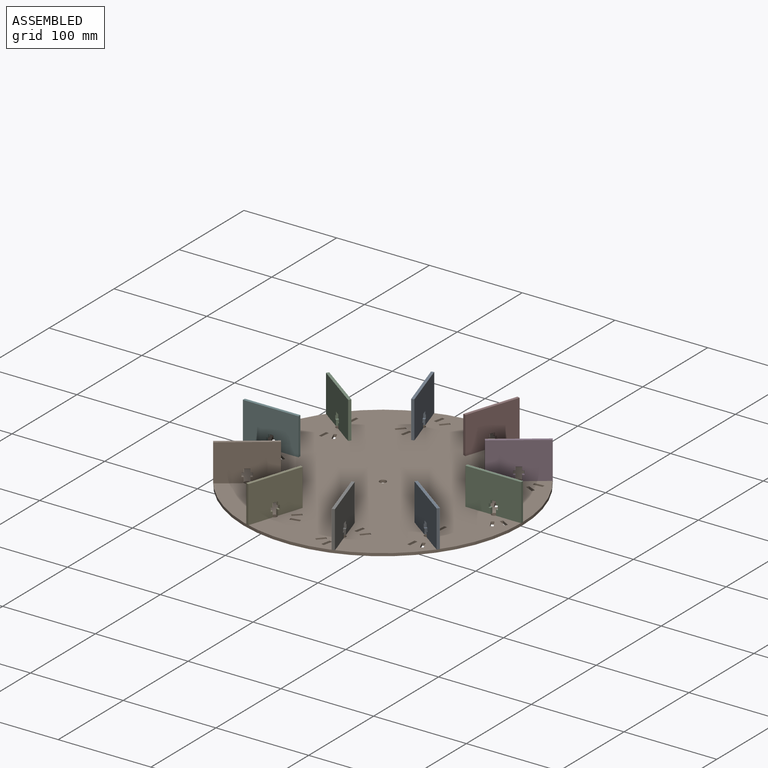
[diagram: assembled view]
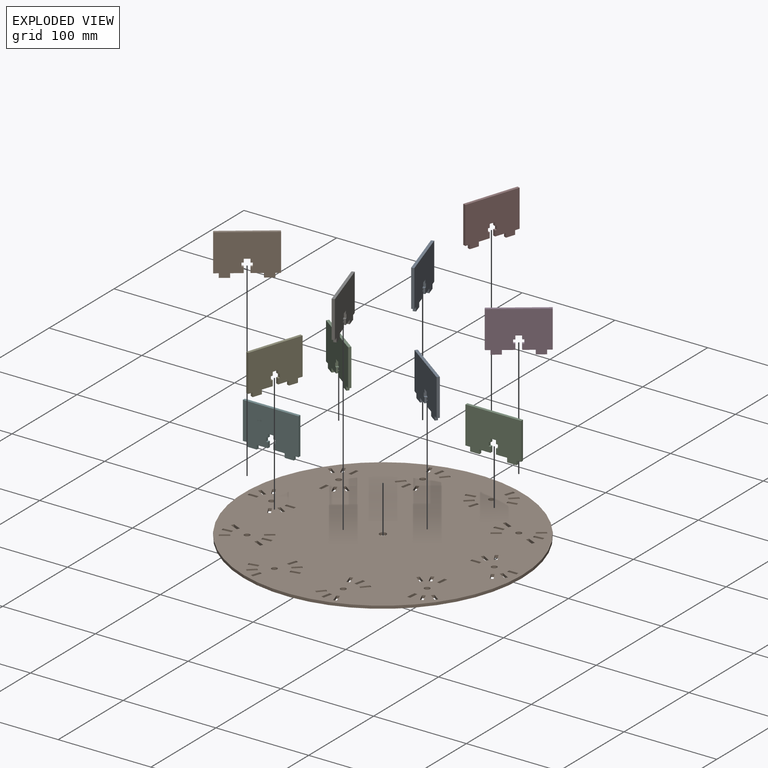
[diagram: exploded view]
GUIDED TOUR — MATED ASSEMBLY (Onshape document 53dfe556006007de46bcb2ab, AutoMate assembly 53dfe556006007de46bcb2ab_06f255de83da2fdaea296ef8_d77c5ae04e32a0eca46fdb66_default)

This assembly has 11 components, labeled P0..P10 below (a component is one placed occurrence of a part; the same part can appear more than once), held together by 1 mate. A mate is a constraint between two components; its type names the relative motion it leaves free:
  REVOLUTE — leaves rotation about the listed axis free (a hinge).
Axis/direction vectors are unit vectors and 'through' points are millimeter coordinates, both in the assembly's world frame.

MATES
  1. REVOLUTE "Revolute 1": P2 <-> P1, axis (0.000, 0.000, 1.000) through (120.00, 0.00, 3.00) mm

ASSEMBLY ORDER
  1. P5 — the base component [order verified]
  2. P1 [order verified]
  3. P10 [order verified]
  4. P9 [order verified]
  5. P8 [order verified]
  6. P7 [order verified]
  7. P6 [order verified]
  8. P4 [order verified]
  9. P3 [order verified]
  10. P2 [order verified]
  11. P0 [order verified]
(P1 verified with a relaxed clearance tolerance: the source model stores slight part interference there.)
Order-tag legend:
  [order verified] — this step's position reverses a verified removal order: the component was checked to insert without passing through the ones already placed.

Of the 11 components, 10 carry the full construction recipe — the FeatureScript program that regenerates the part's solid from scratch; the rest are supplied as boundary geometry only.
Each toured component is shown spotlighted twice — in the assembled view, then in the exploded view, where a leader line traces a displaced component back to its assembled socket (saturated green if recipe-attached, orange if geometry-only; every other component desaturated gray) — followed by its recipe or geometry summary and the mates that hold it.
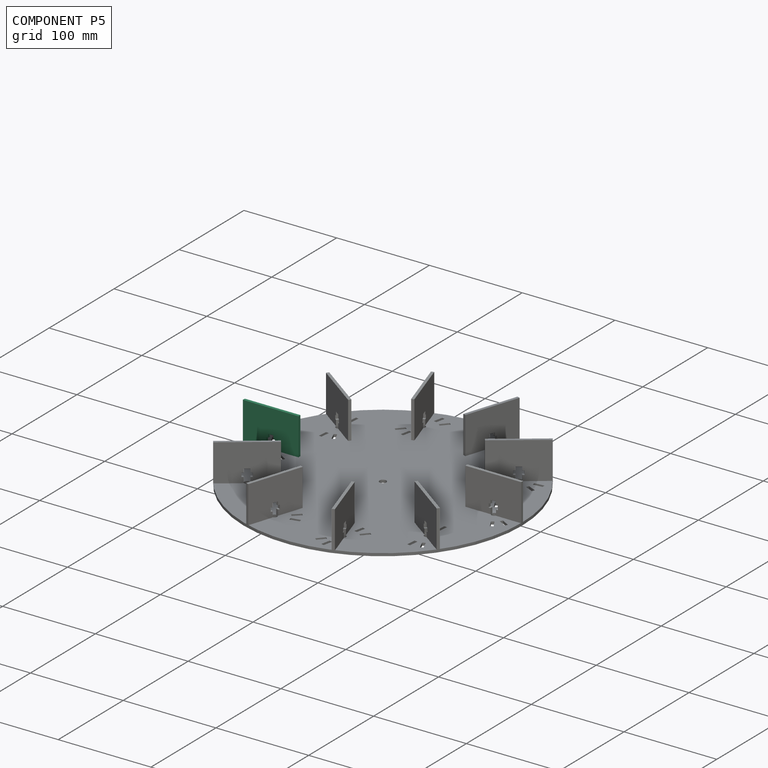
[diagram: component P5 — assembled]
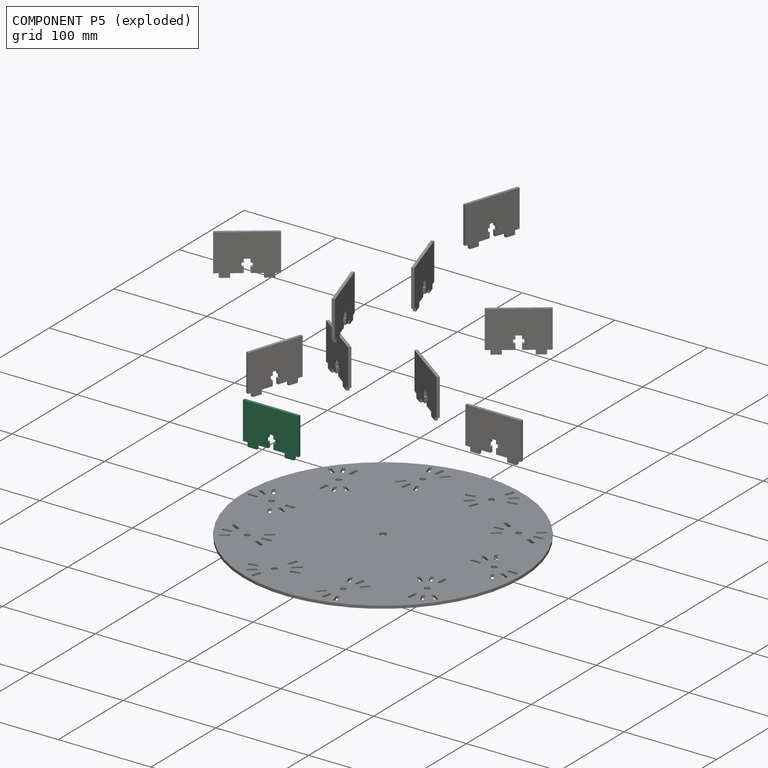
[diagram: component P5 — exploded]
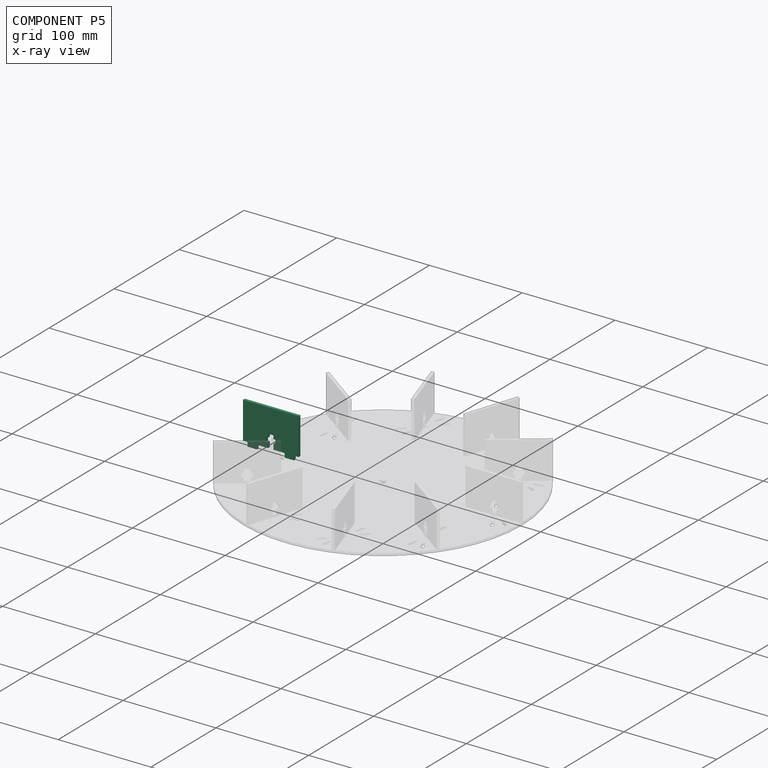
[diagram: component P5 — x-ray view]
COMPONENT P5 — same part as P0 (CADFS 00237727); its construction recipe is shown at P0.
Held by: no mates (free).
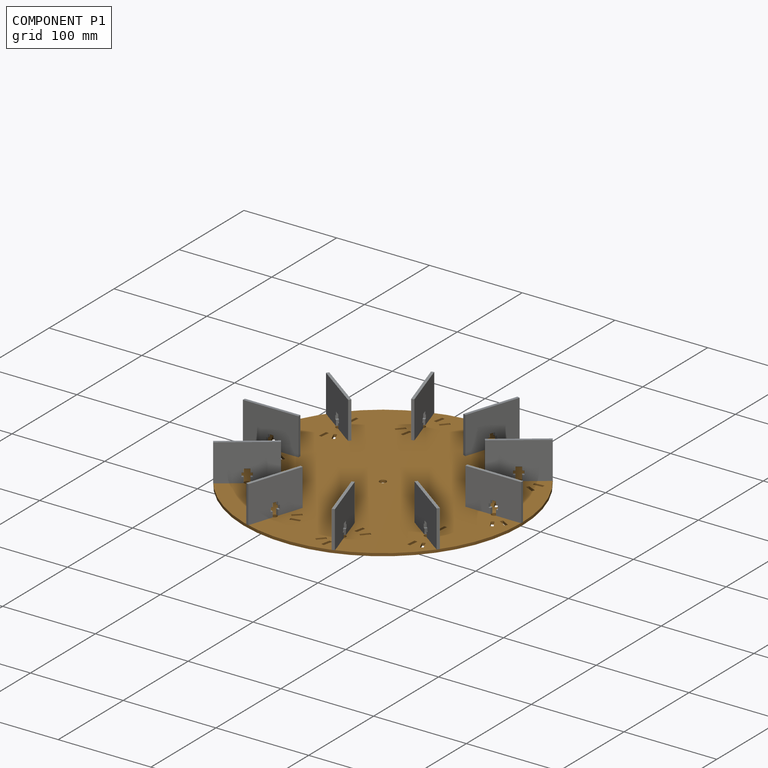
[diagram: component P1 — assembled]
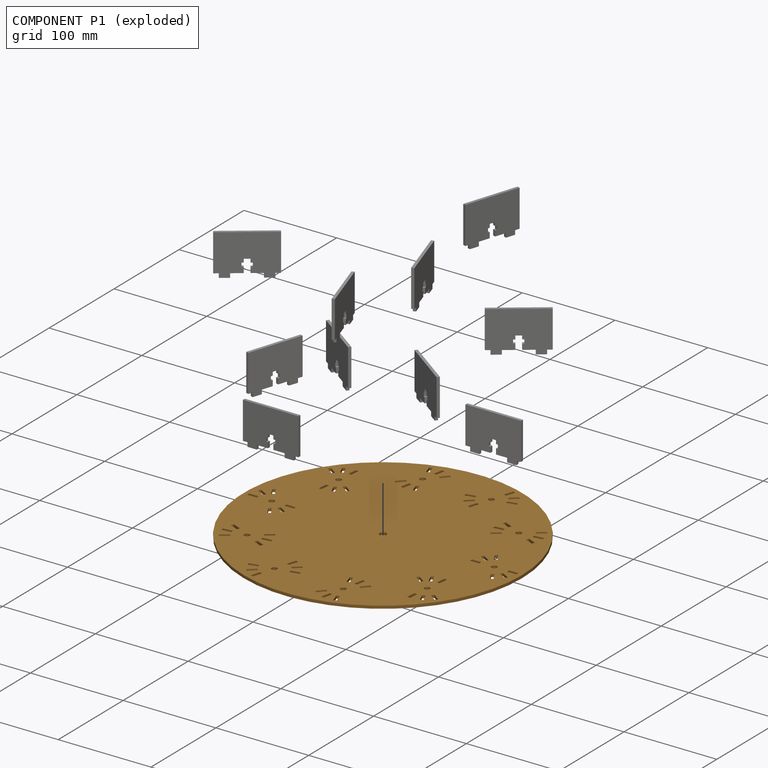
[diagram: component P1 — exploded]
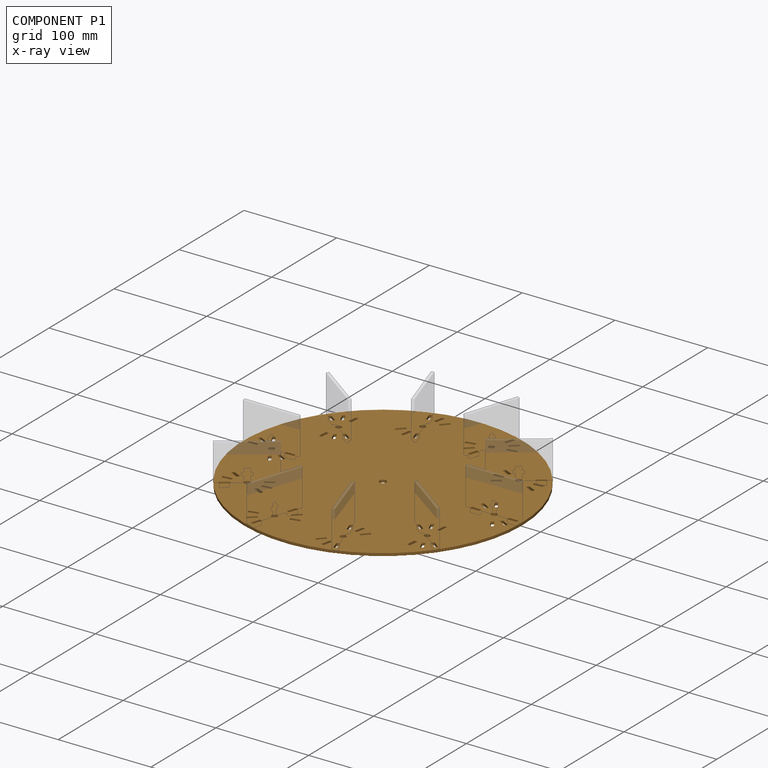
[diagram: component P1 — x-ray view]
COMPONENT P1 — geometry summary (no construction recipe available for this part):
  bounding box: 300.0 x 300.0 x 3.0 mm
  B-rep topology: 1 solid, 254 faces, 1530 edges
  volume: 205325 mm^3 (76% of its bounding box)
  symmetry: 2-fold rotationally symmetric about the x axis; 2-fold rotationally symmetric about the y axis; revolution-symmetric about the z axis through its bounding-box center; mirror-symmetric across its x mid-plane, y mid-plane, z mid-plane
Held by: REVOLUTE mate "Revolute 1" to P2.
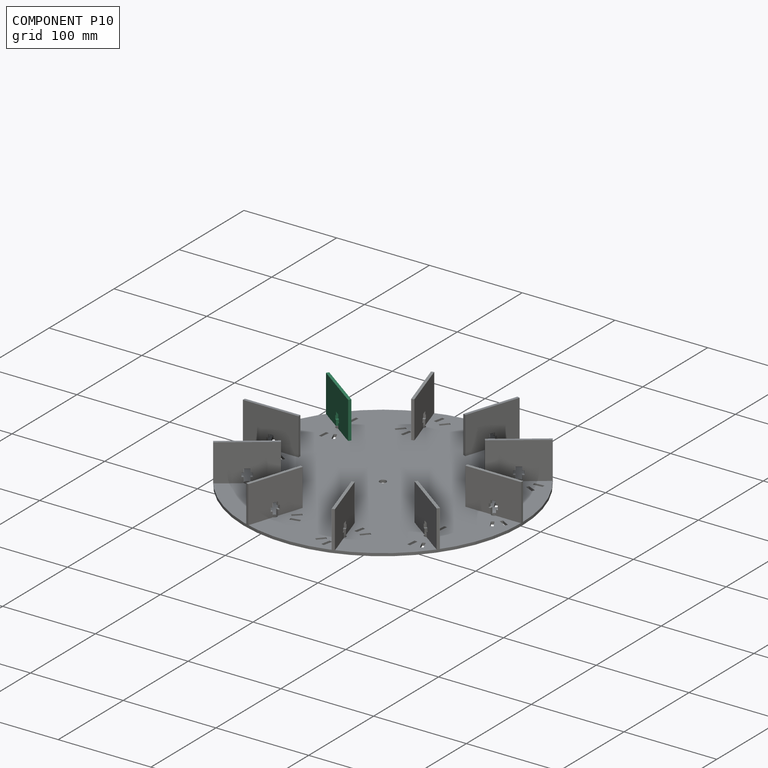
[diagram: component P10 — assembled]
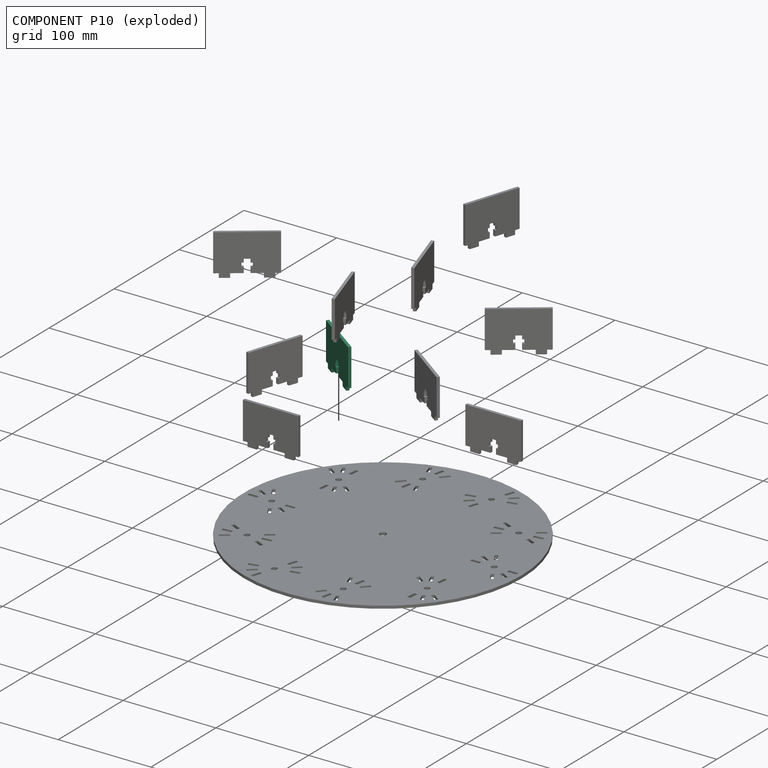
[diagram: component P10 — exploded]
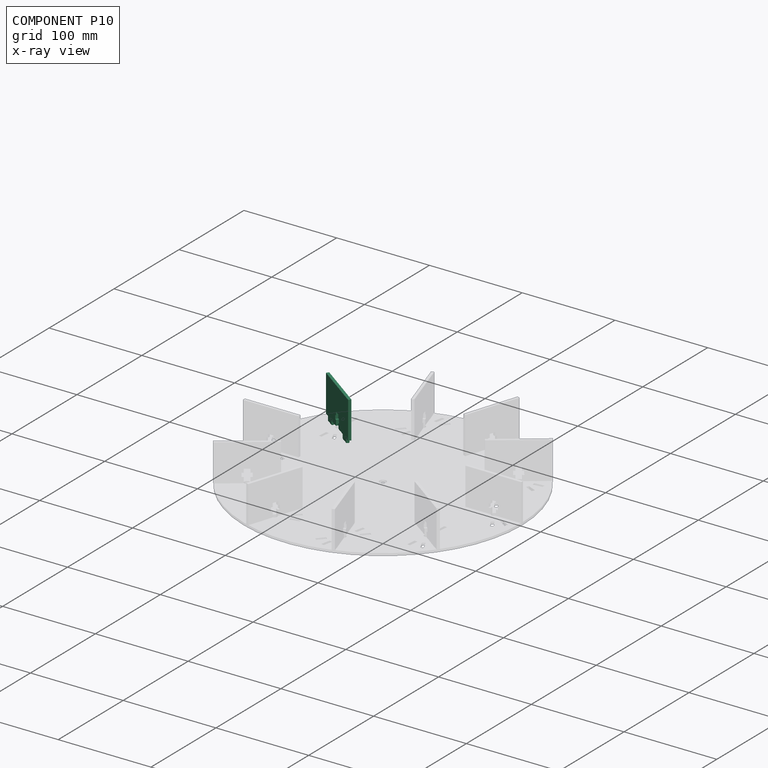
[diagram: component P10 — x-ray view]
COMPONENT P10 — same part as P0 (CADFS 00237727); its construction recipe is shown at P0.
Held by: no mates (free).
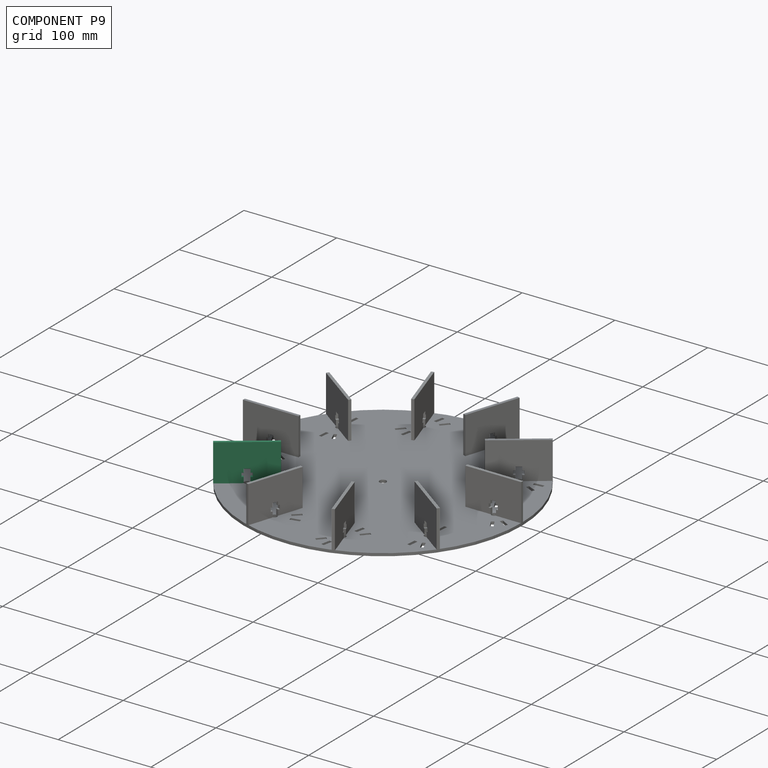
[diagram: component P9 — assembled]
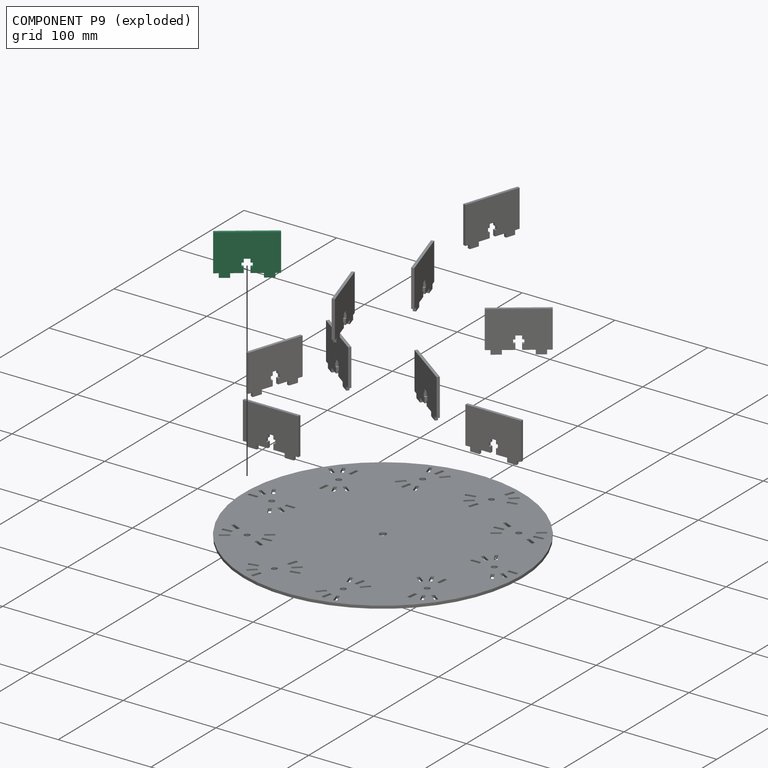
[diagram: component P9 — exploded]
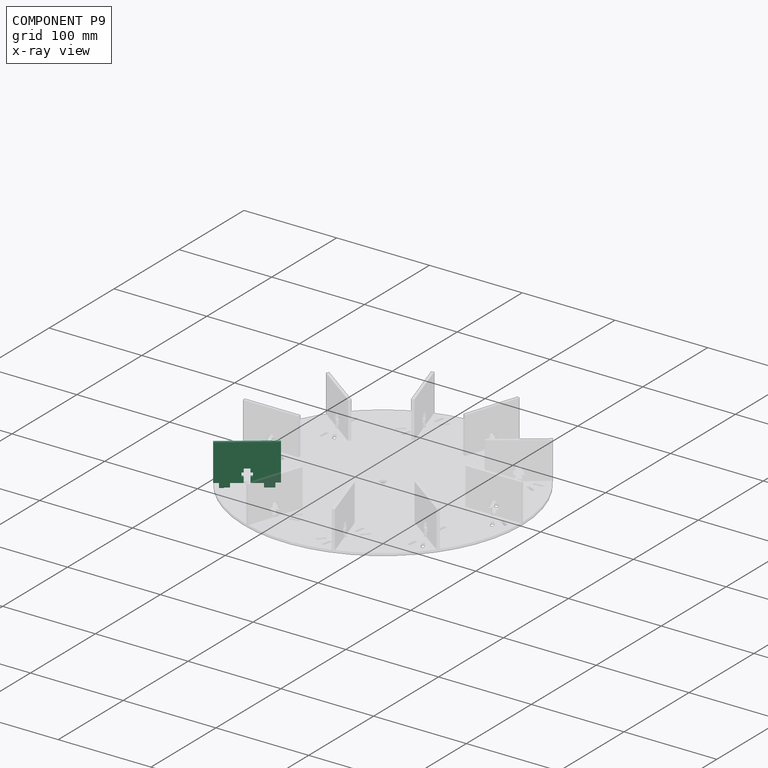
[diagram: component P9 — x-ray view]
COMPONENT P9 — same part as P0 (CADFS 00237727); its construction recipe is shown at P0.
Held by: no mates (free).
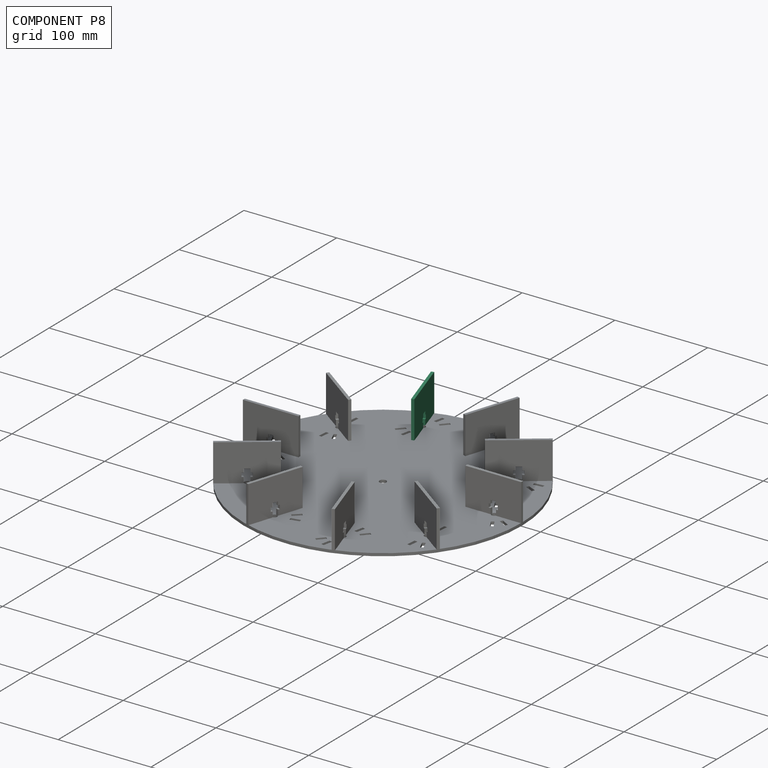
[diagram: component P8 — assembled]
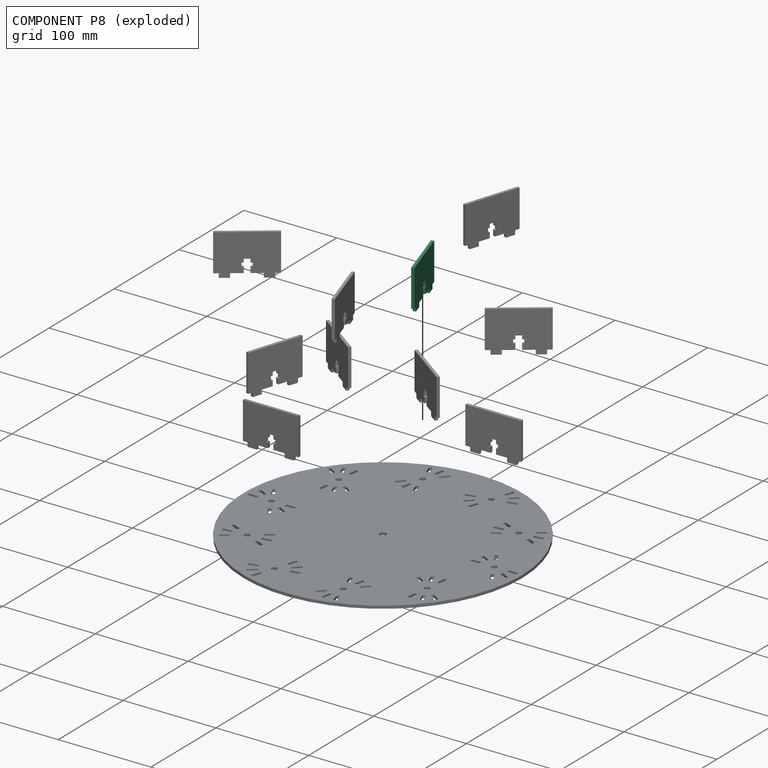
[diagram: component P8 — exploded]
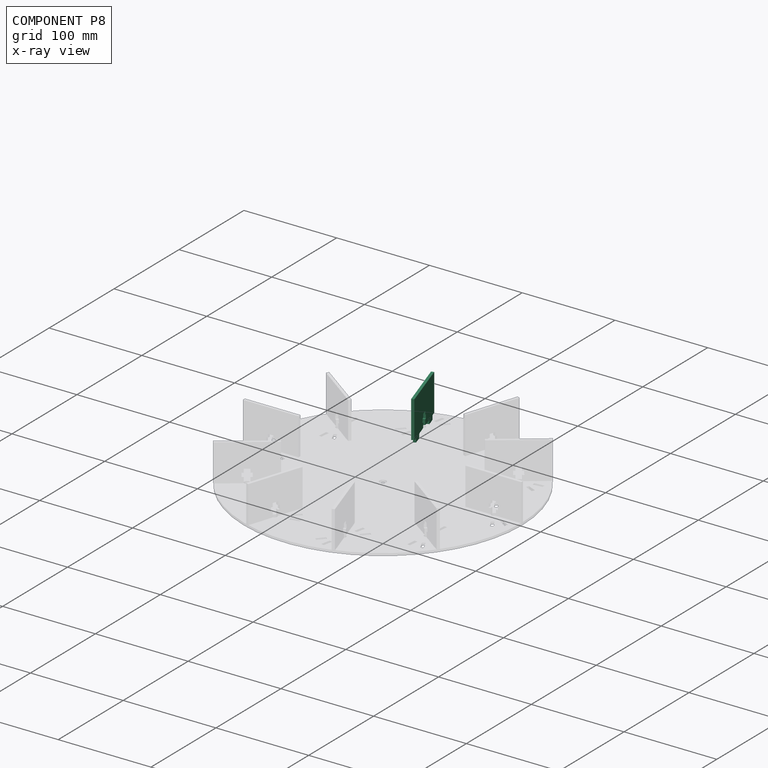
[diagram: component P8 — x-ray view]
COMPONENT P8 — same part as P0 (CADFS 00237727); its construction recipe is shown at P0.
Held by: no mates (free).
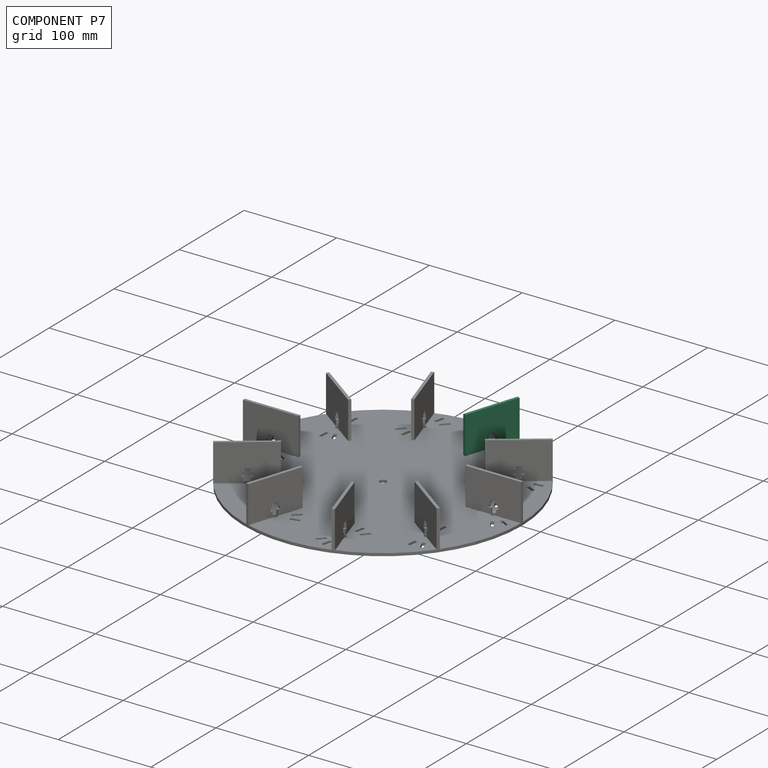
[diagram: component P7 — assembled]
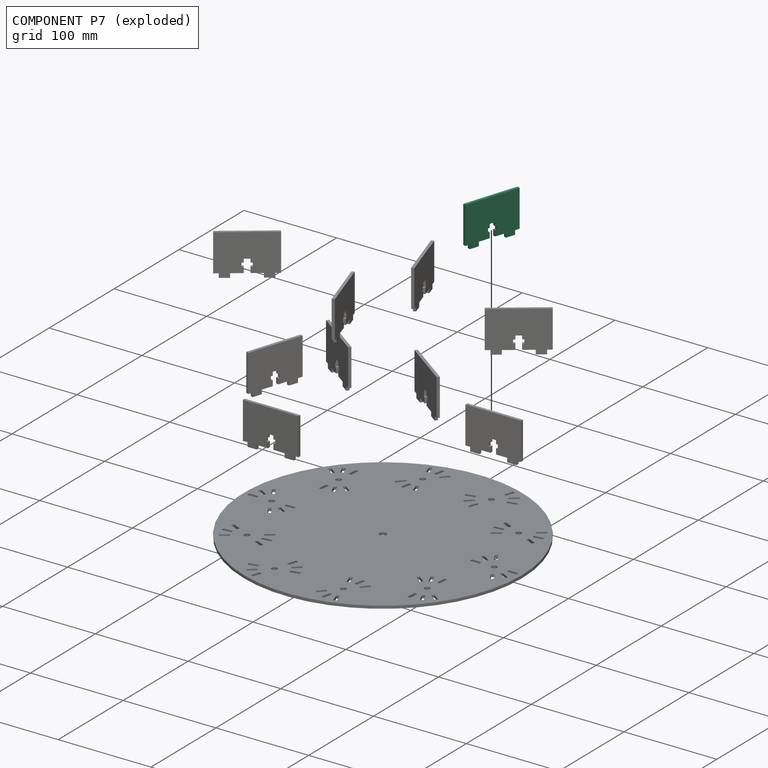
[diagram: component P7 — exploded]
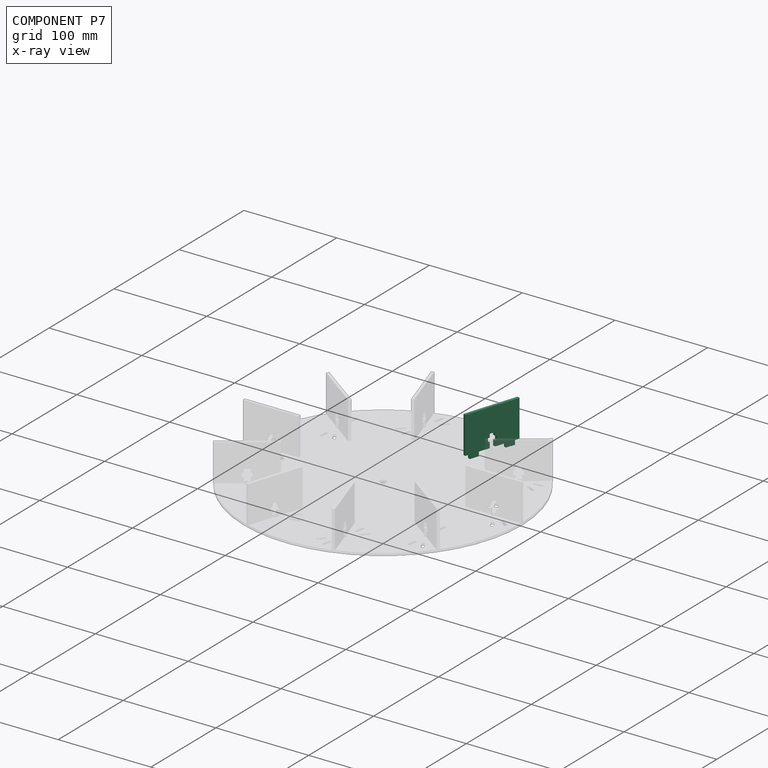
[diagram: component P7 — x-ray view]
COMPONENT P7 — same part as P0 (CADFS 00237727); its construction recipe is shown at P0.
Held by: no mates (free).
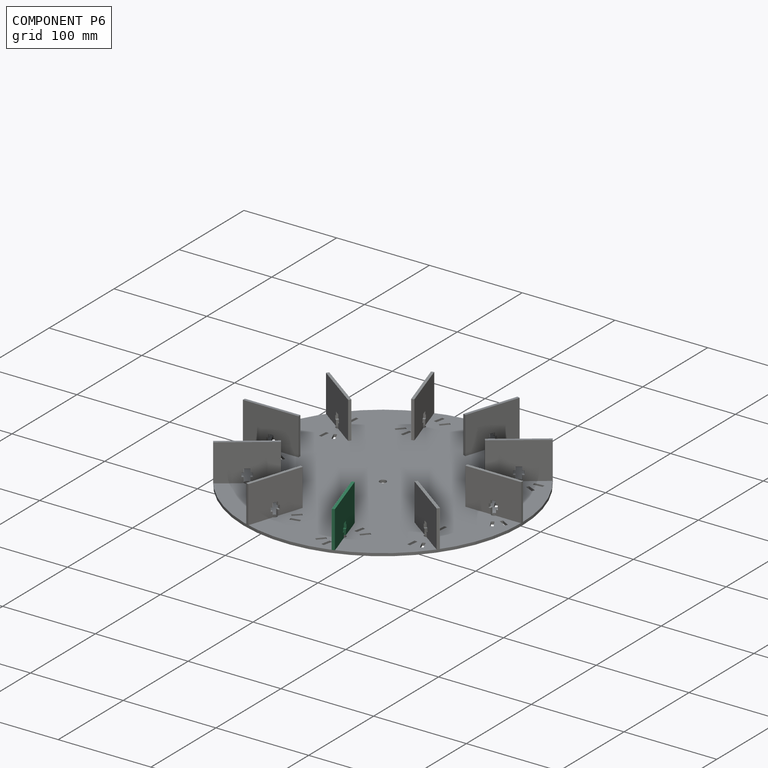
[diagram: component P6 — assembled]
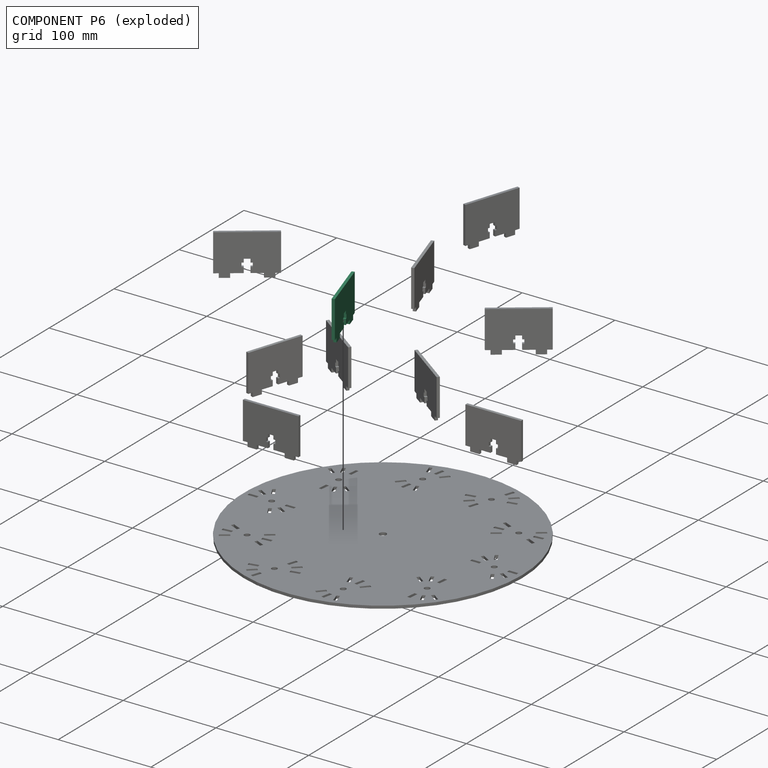
[diagram: component P6 — exploded]
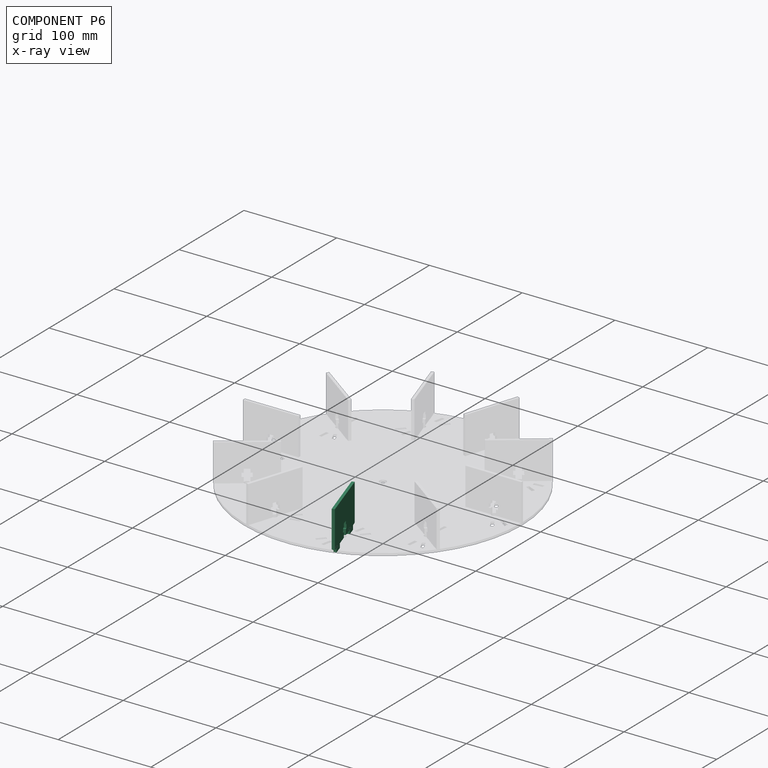
[diagram: component P6 — x-ray view]
COMPONENT P6 — same part as P0 (CADFS 00237727); its construction recipe is shown at P0.
Held by: no mates (free).
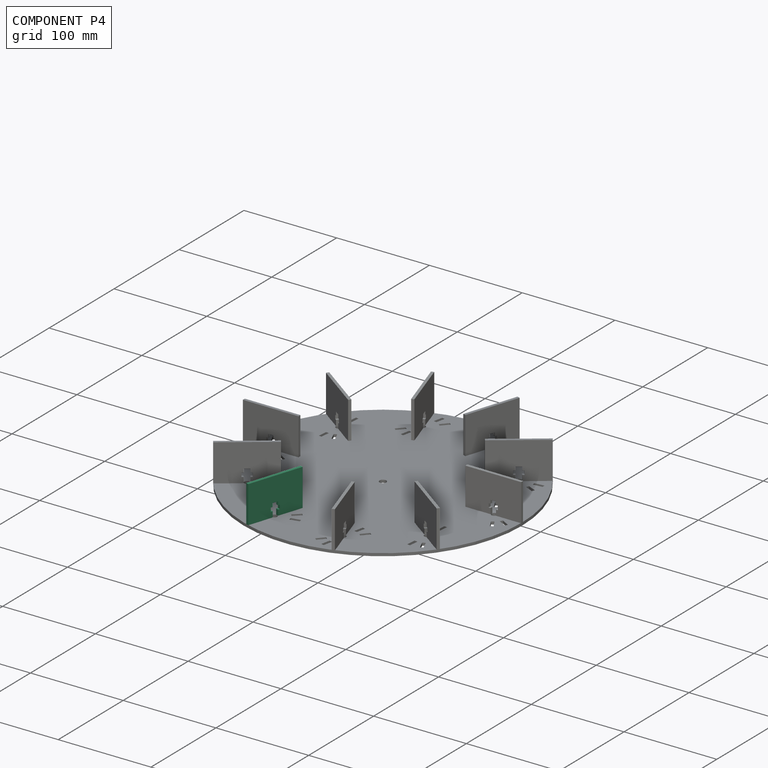
[diagram: component P4 — assembled]
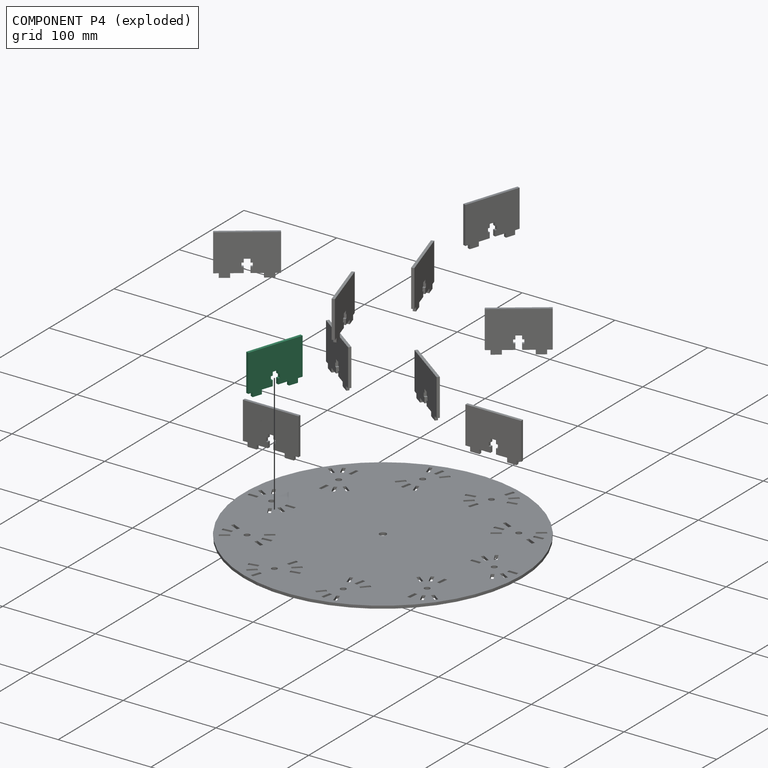
[diagram: component P4 — exploded]
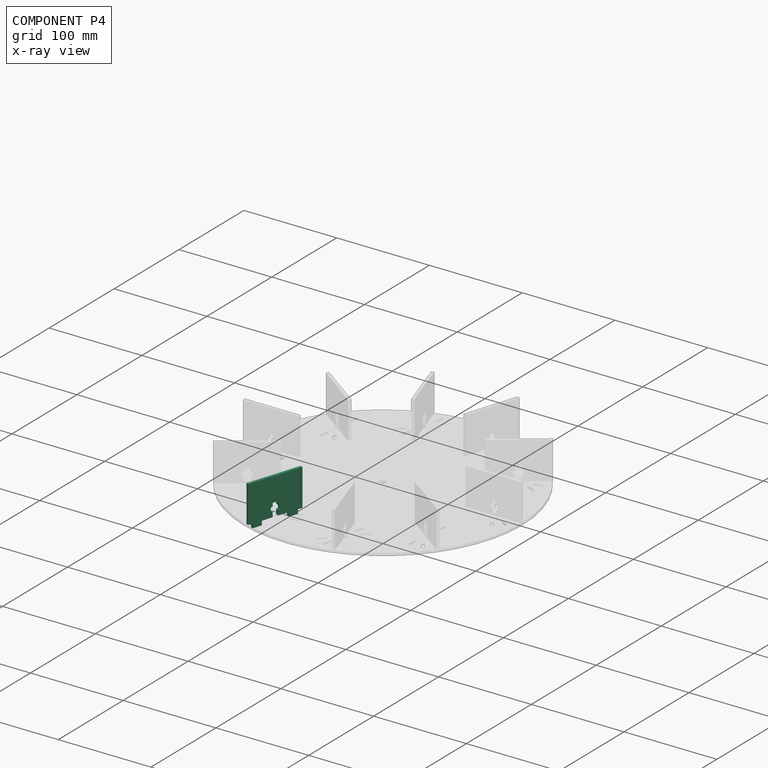
[diagram: component P4 — x-ray view]
COMPONENT P4 — same part as P0 (CADFS 00237727); its construction recipe is shown at P0.
Held by: no mates (free).
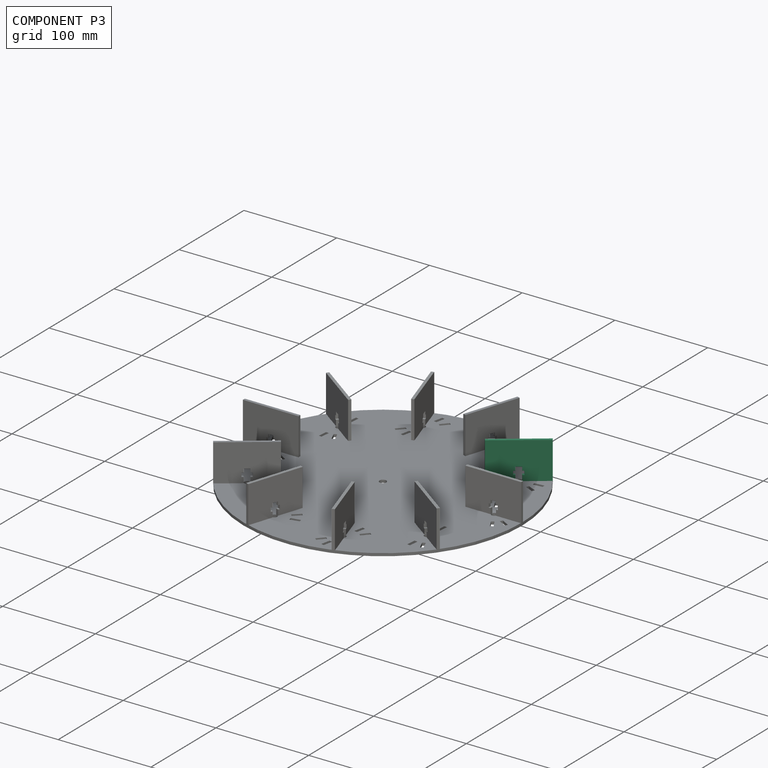
[diagram: component P3 — assembled]
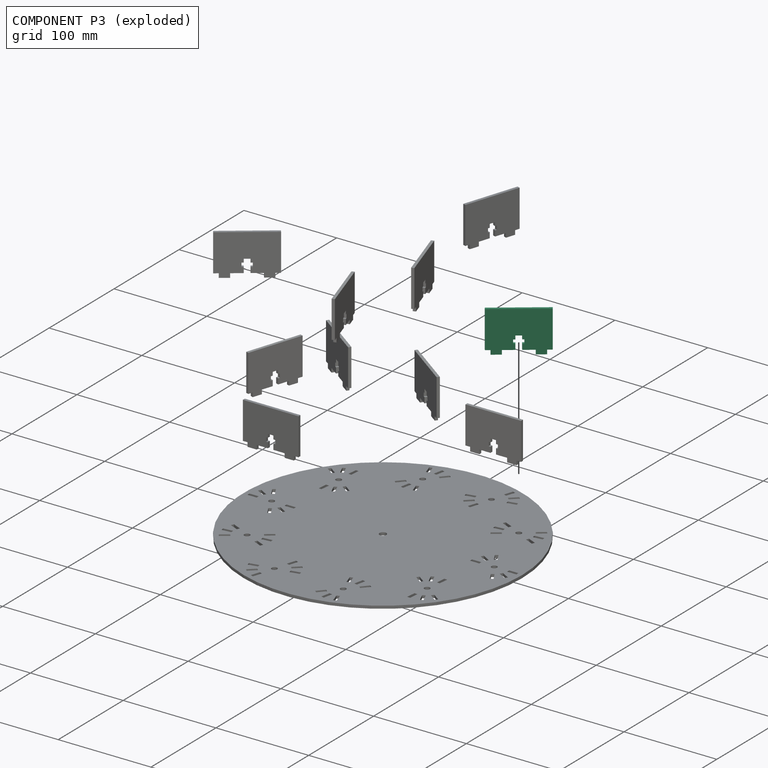
[diagram: component P3 — exploded]
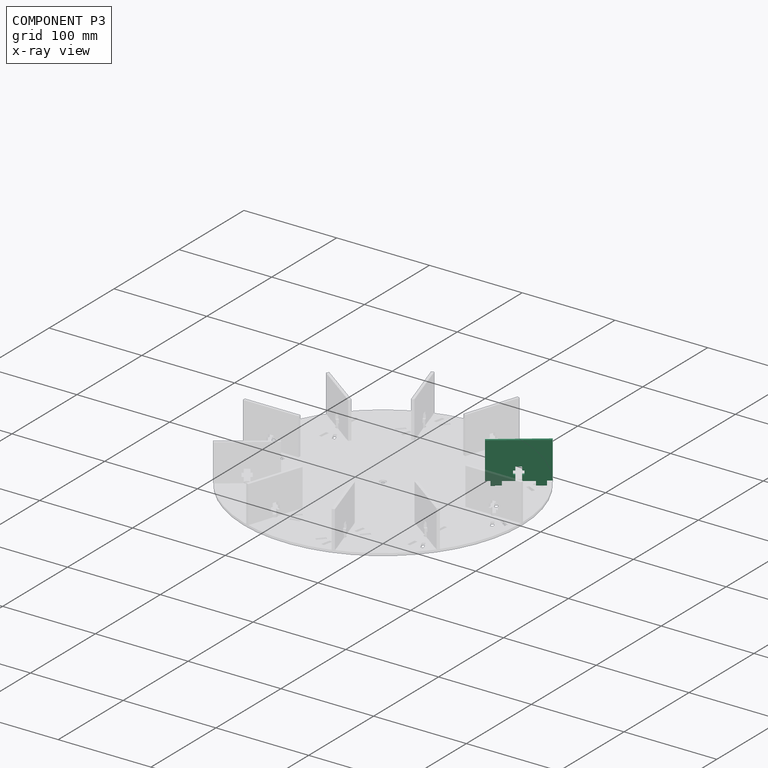
[diagram: component P3 — x-ray view]
COMPONENT P3 — same part as P0 (CADFS 00237727); its construction recipe is shown at P0.
Held by: no mates (free).
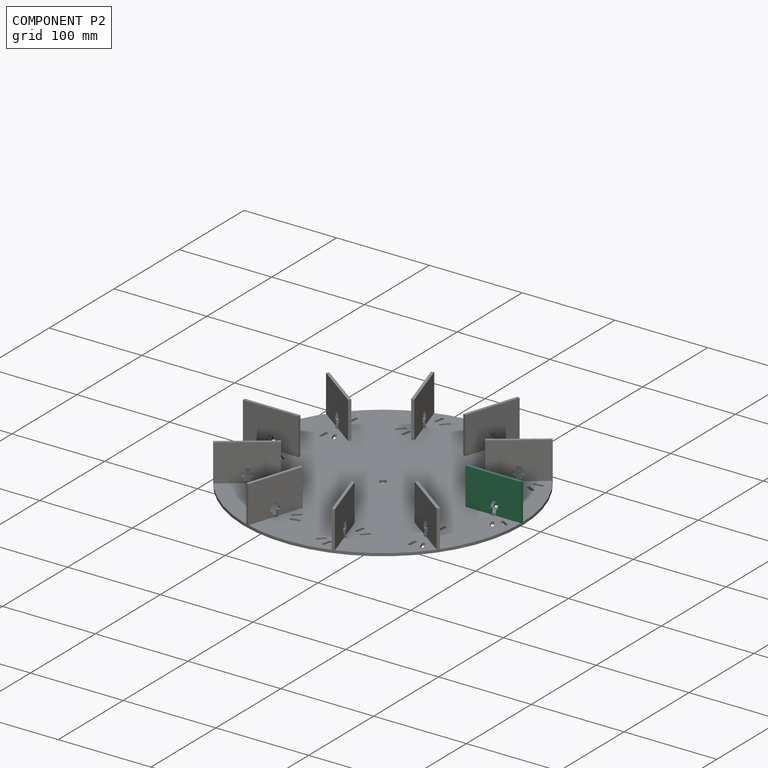
[diagram: component P2 — assembled]
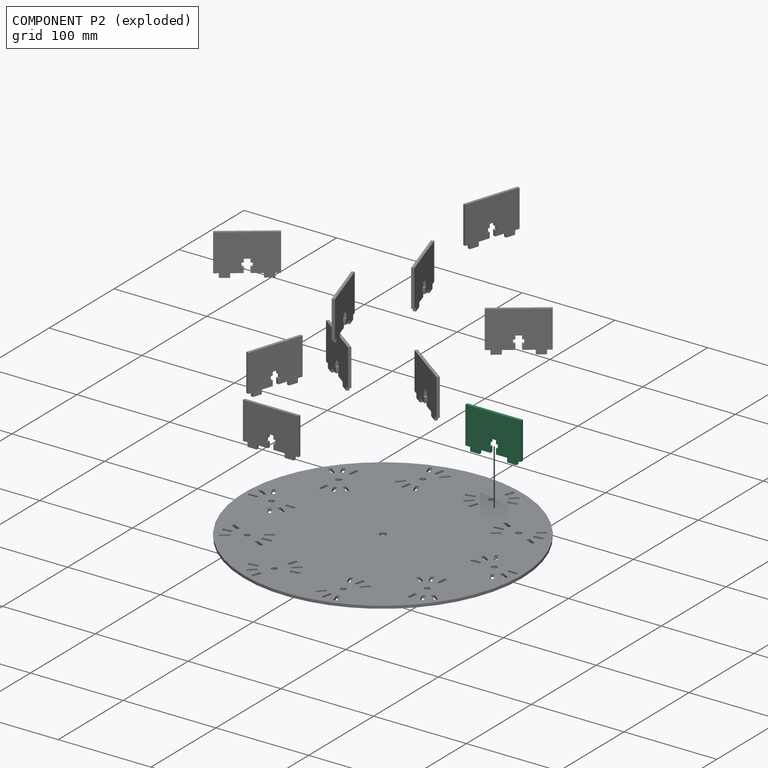
[diagram: component P2 — exploded]
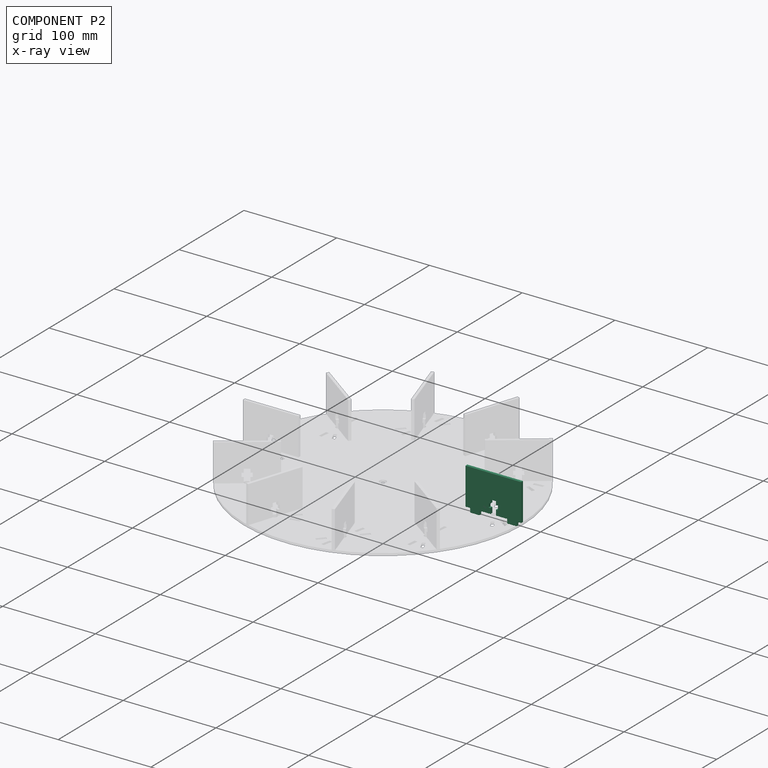
[diagram: component P2 — x-ray view]
COMPONENT P2 — same part as P0 (CADFS 00237727); its construction recipe is shown at P0.
Held by: REVOLUTE mate "Revolute 1" to P1.
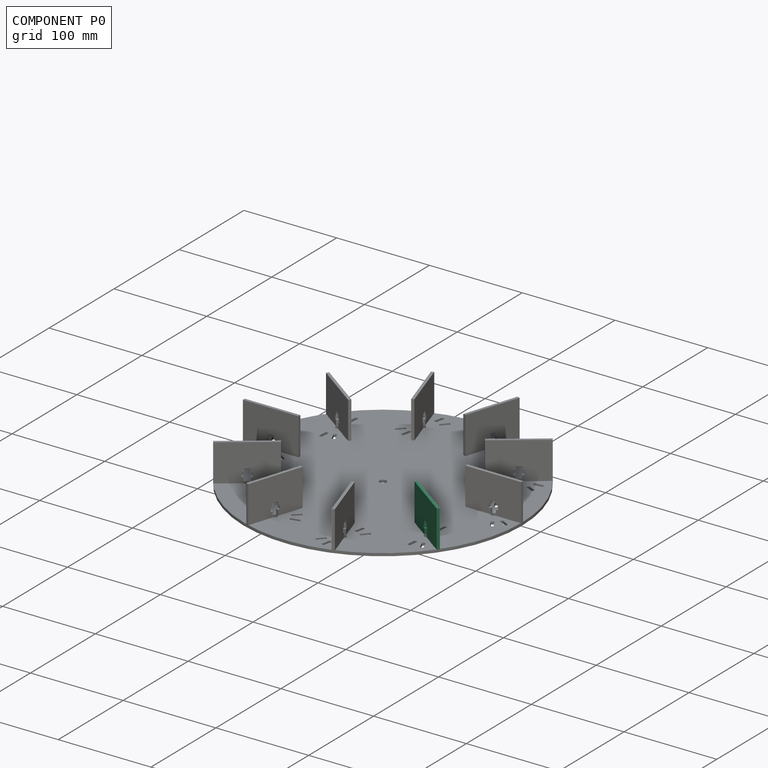
[diagram: component P0 — assembled]
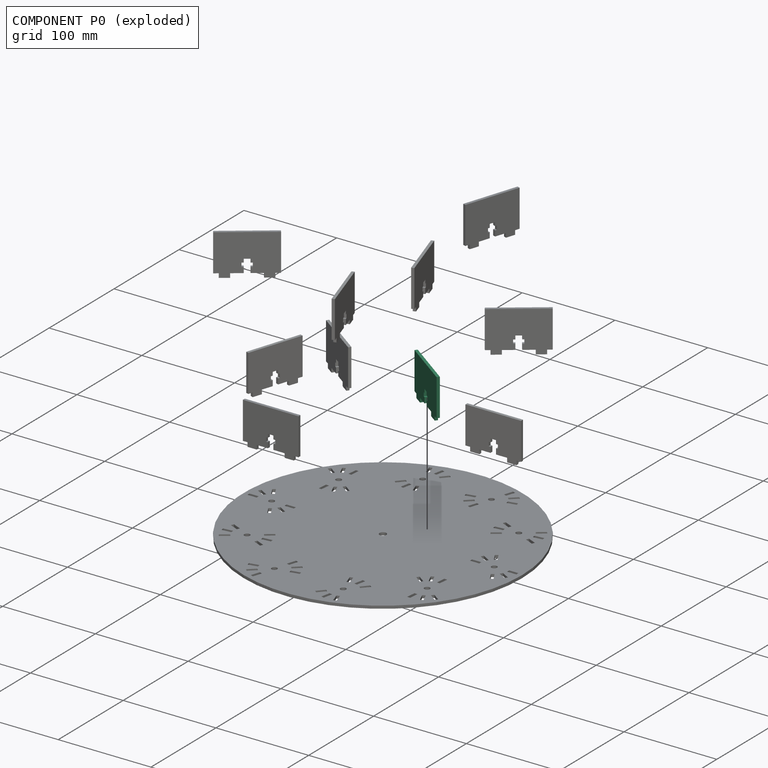
[diagram: component P0 — exploded]
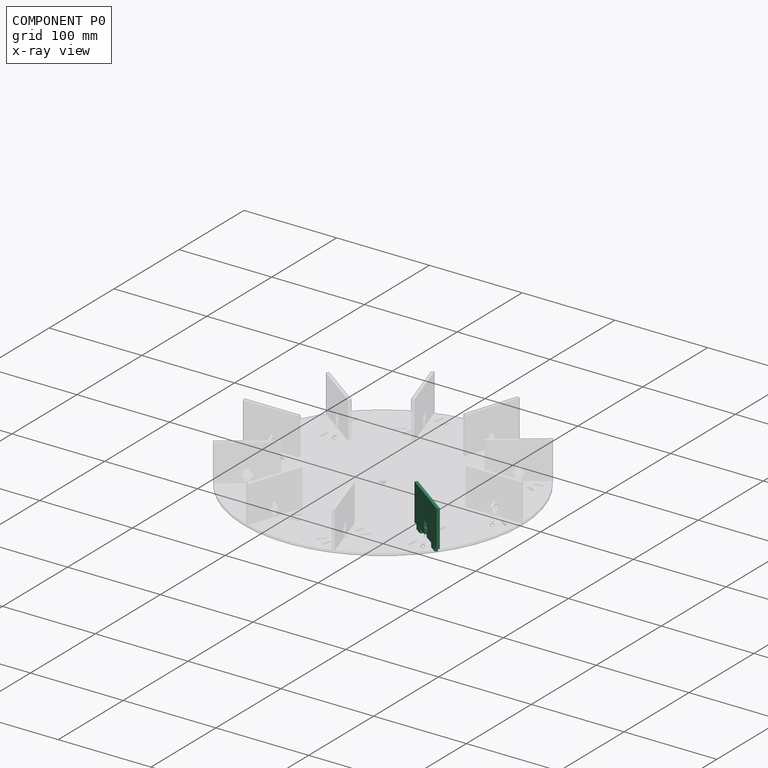
[diagram: component P0 — x-ray view]
COMPONENT P0 — recipe-attached (CADFS 00237727, mesh-verified: the recipe's output STEP matches this component's geometry to below the mesh-comparison resolution (tessellation chordal tolerance ~0.112 mm)).
Held by: no mates (free).
Construction recipe (FeatureScript — the CAD program that rebuilds this solid; sketch coordinates are in the units given by the * unit suffixes, e.g. mm):

FeatureScript 1511;
import(path : "onshape/std/geometry.fs", version : "1511.0");
import(path : "onshape/std/common.fs", version : "1511.0");
const mm = millimeter;
const VERTEX = EntityType.VERTEX;
const EDGE = EntityType.EDGE;
const FACE = EntityType.FACE;
const BODY = EntityType.BODY;
function v(x, y){return vector(x, y);}
function OD(order){return orderDisambiguation(order);}
function OSD(set){return originalSetDisambiguation(set);}
function TD(topology){return topologyDisambiguation(topology);}
function TDD(query){return trueDependencyDisambiguation(query);}
function sQuery(a, b, c) {return sketchEntityQuery(a, b, c);}

annotation { "Feature Type Name" : "Feature", "Feature Type Description" : "" }
export const myFeature = defineFeature(function(context is Context, id is Id, definition is map)
    precondition{}
    {
        {
            var Q0;
            Q0=qCreatedBy(makeId("Front.planeOp"),FACE);
            var sketch = newSketch(context, id + "F0", { "sketchPlane" : qUnion([Q0])});
            skLineSegment(sketch, "E0.bottom", {"start": v(-30, 0) * mm, "end": v(-25, 0) * mm});
            skLineSegment(sketch, "E0.top", {"start": v(-30, 40) * mm, "end": v(30, 40) * mm});
            skLineSegment(sketch, "E0.left", {"start": v(-30, 0) * mm, "end": v(-30, 40) * mm});
            skLineSegment(sketch, "E0.right", {"start": v(30, 0) * mm, "end": v(30, 40) * mm});
            skLineSegment(sketch, "E1.top", {"start": v(-25, -4.5) * mm, "end": v(-15, -4.5) * mm});
            skLineSegment(sketch, "E1.left", {"start": v(-25, 0) * mm, "end": v(-25, -4.5) * mm});
            skLineSegment(sketch, "E1.right", {"start": v(-15, 0) * mm, "end": v(-15, -4.5) * mm});
            skLineSegment(sketch, "E2.trimOffspring", {"start": v(-15, 0) * mm, "end": v(-3, 0) * mm});
            skLineSegment(sketch, "E3.MirrorCS", {"start": v(25, 0) * mm, "end": v(25, -4.5) * mm});
            skLineSegment(sketch, "E4.MirrorCS", {"start": v(25, -4.5) * mm, "end": v(15, -4.5) * mm});
            skLineSegment(sketch, "E5.MirrorCS", {"start": v(15, 0) * mm, "end": v(15, -4.5) * mm});
            skLineSegment(sketch, "E6.trimOffspring", {"start": v(25, 0) * mm, "end": v(30, 0) * mm});
            skLineSegment(sketch, "E7", {"start": v(-3, 0) * mm, "end": v(-3, 6) * mm});
            skLineSegment(sketch, "E8", {"start": v(-3, 6) * mm, "end": v(-5, 6) * mm});
            skLineSegment(sketch, "E9", {"start": v(-5, 6) * mm, "end": v(-5, 10.2) * mm});
            skLineSegment(sketch, "E10.MirrorCS", {"start": v(5, 6) * mm, "end": v(5, 10.2) * mm});
            skLineSegment(sketch, "E11.MirrorCS", {"start": v(3, 0) * mm, "end": v(3, 6) * mm});
            skLineSegment(sketch, "E12.MirrorCS", {"start": v(3, 6) * mm, "end": v(5, 6) * mm});
            skLineSegment(sketch, "E13", {"start": v(-5, 10.2) * mm, "end": v(5, 10.2) * mm});
            skLineSegment(sketch, "E14.trimOffspring", {"start": v(3, 0) * mm, "end": v(15, 0) * mm});
            skLineSegment(sketch, "E15.bottom", {"start": v(-3, 10.2) * mm, "end": v(3, 10.2) * mm});
            skLineSegment(sketch, "E15.top", {"start": v(-3, 14) * mm, "end": v(3, 14) * mm});
            skLineSegment(sketch, "E15.left", {"start": v(-3, 10.2) * mm, "end": v(-3, 14) * mm});
            skLineSegment(sketch, "E15.right", {"start": v(3, 10.2) * mm, "end": v(3, 14) * mm});
            skSolve(sketch);
        }
        {
            var Q0;
            Q0=makeQuery(id+"F0.imprint","IMPRINT",FACE,{"disambiguationData":[TD([[makeQuery(id+"F0.imprint","IMPRINT",EDGE,{"derivedFrom":sQuery(id+"F0.wireOp",EDGE,"E0.bottom")}),1.0]])]});
            extrude(context, id + "F1", {"entities" : qUnion([Q0]), "endBound" : BoundingType.SYMMETRIC, "depth" : 3 * mm});
        }
    });
PROVENANCE & LICENSES
Assembly (occurrences, transforms, mates, per-part STEP geometry): AutoMate dataset, Zenodo record 7776208, CC0.
Construction recipes: CADFS (HuggingFace VladPyatov/CADFS, CC-BY-4.0, layered over the ABC dataset), FeatureScript reconstruction programs keyed by ABC model id.
Join: ABC meta listings map ABC model id -> Onshape documentId; within a shared document, parts are matched by geometric signature (bounding-box dims + volume at 0.1% relative tolerance, exact B-rep face/solid counts).
Verification: 10 of this assembly's 11 components carry a recipe attachment, and every attachment is mesh-verified: the CADFS STEP and the AutoMate member STEP were compared as meshes in their shared local frame (symmetric sampled-point-to-mesh distance); worst across the 10 attachments: below the mesh-comparison resolution (tessellation chordal tolerance ~0.112 mm) on a 75 mm part.
Renders: orthographic iso camera (az 35 / el 25); the floor grid conveys scale (grid pitch printed in each image; no ruler). In the exploded view each component is displaced by its stored offset vector: the offsets alone carry the explosion direction (mate normal/axis signs are not orientation cues and do not encode it), and separation distances are assigned per mate-chain, not proportionally to assembly-order depth.
